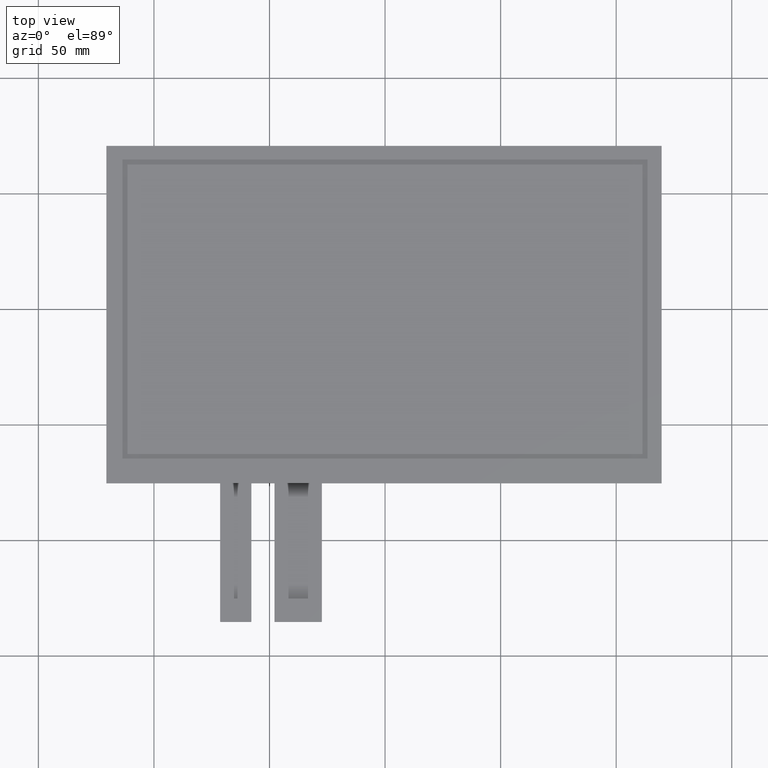
[diagram: clean part render]
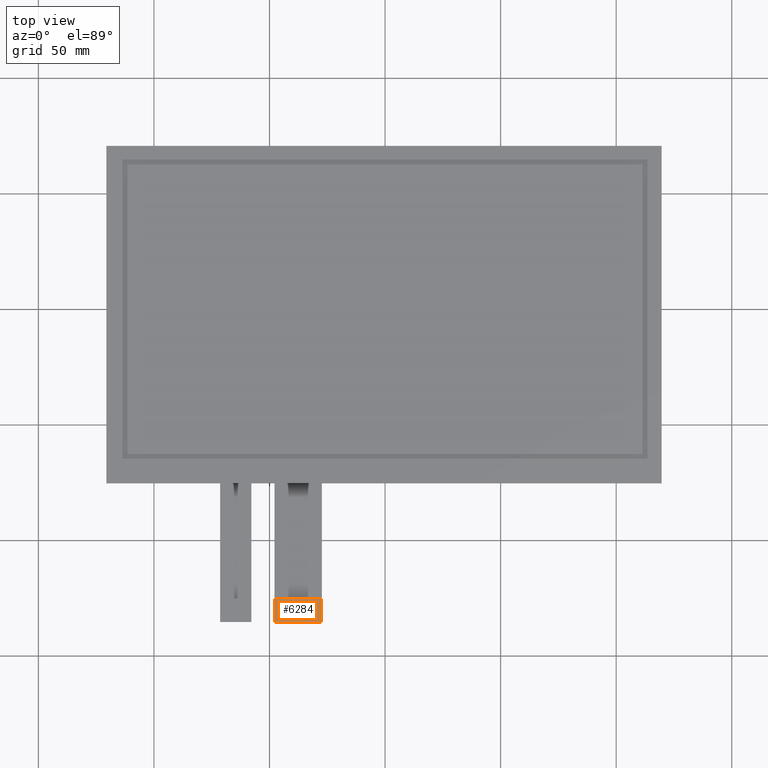
[diagram: same view with one face highlighted and labeled with its STEP entity id]
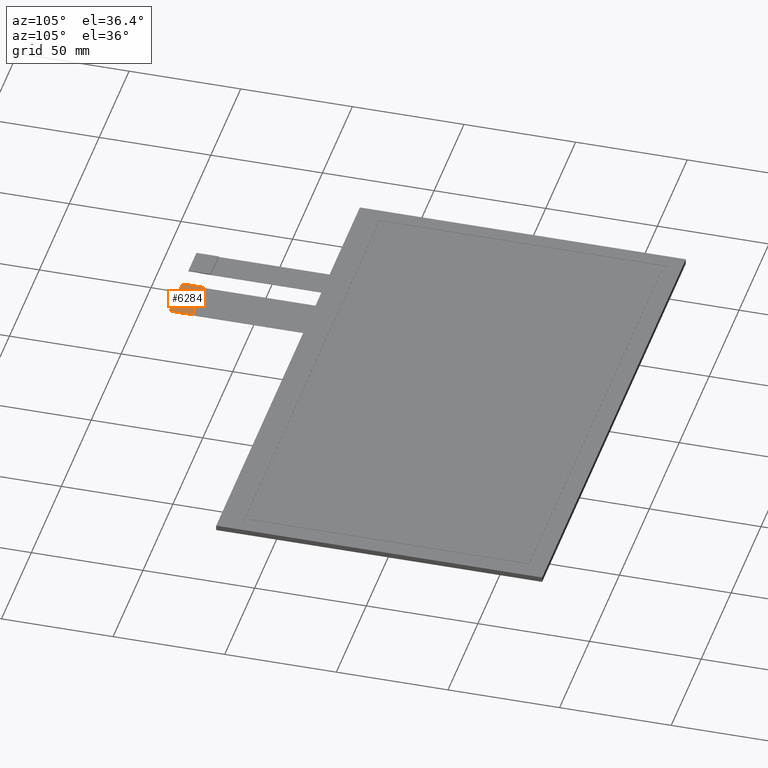
[diagram: same view with one face highlighted and labeled with its STEP entity id]
A machine part, top view. The second image highlights one B-rep face of the part: STEP entity #6284.
A second angle (auxiliary view) of the same face is appended — the face is thin or edge-on in the first view.
In plain terms, the highlighted planar face has unit normal (0, 0, 1).
Its self-contained STEP definition (entity closure, byte-faithful):
#346=PLANE('',#6614);
#648=FACE_OUTER_BOUND('',#950,.T.);
#950=EDGE_LOOP('',(#5889,#5890,#5891,#5892,#5893,#5894));
#1263=LINE('',#8727,#2143);
#1274=LINE('',#8753,#2154);
#1808=LINE('',#9822,#2688);
#1814=LINE('',#9832,#2694);
#2143=VECTOR('',#6953,10.);
#2154=VECTOR('',#6974,10.);
#2688=VECTOR('',#8042,10.);
#2694=VECTOR('',#8050,10.);
#2741=CIRCLE('',#6338,0.2);
#2744=CIRCLE('',#6344,0.2);
#2866=VERTEX_POINT('',#8394);
#2867=VERTEX_POINT('',#8395);
#3031=VERTEX_POINT('',#8725);
#3035=VERTEX_POINT('',#8737);
#3041=VERTEX_POINT('',#8751);
#3309=VERTEX_POINT('',#9821);
#3463=EDGE_CURVE('',#2866,#2867,#2741,.T.);
#3629=EDGE_CURVE('',#2866,#3031,#1263,.T.);
#3635=EDGE_CURVE('',#3035,#3031,#2744,.T.);
#3642=EDGE_CURVE('',#3035,#3041,#1274,.T.);
#4176=EDGE_CURVE('',#3309,#2867,#1808,.T.);
#4182=EDGE_CURVE('',#3041,#3309,#1814,.T.);
#5889=ORIENTED_EDGE('',*,*,#3463,.F.);
#5890=ORIENTED_EDGE('',*,*,#3629,.T.);
#5891=ORIENTED_EDGE('',*,*,#3635,.F.);
#5892=ORIENTED_EDGE('',*,*,#3642,.T.);
#5893=ORIENTED_EDGE('',*,*,#4182,.T.);
#5894=ORIENTED_EDGE('',*,*,#4176,.T.);
#6284=ADVANCED_FACE('',(#648),#346,.T.);
#6338=AXIS2_PLACEMENT_3D('',#8396,#6783,#6784);
#6344=AXIS2_PLACEMENT_3D('',#8739,#6964,#6965);
#6614=AXIS2_PLACEMENT_3D('',#9833,#8051,#8052);
#6783=DIRECTION('center_axis',(0.,0.,-1.));
#6784=DIRECTION('ref_axis',(-0.707106781186548,-0.707106781186548,0.));
#6953=DIRECTION('',(1.,0.,0.));
#6964=DIRECTION('center_axis',(0.,0.,-1.));
#6965=DIRECTION('ref_axis',(0.707106781186563,-0.707106781186532,0.));
#6974=DIRECTION('',(0.,1.,0.));
#8042=DIRECTION('',(0.,-1.,0.));
#8050=DIRECTION('',(-1.,0.,0.));
#8051=DIRECTION('center_axis',(0.,0.,1.));
#8052=DIRECTION('ref_axis',(1.,0.,0.));
#8394=CARTESIAN_POINT('',(-47.66,-135.34,-0.8));
#8395=CARTESIAN_POINT('',(-47.86,-135.14,-0.8));
#8396=CARTESIAN_POINT('Origin',(-47.66,-135.14,-0.8));
#8725=CARTESIAN_POINT('',(-27.5599999999999,-135.34,-0.8));
#8727=CARTESIAN_POINT('',(-47.86,-135.34,-0.8));
#8737=CARTESIAN_POINT('',(-27.3599999999999,-135.14,-0.8));
#8739=CARTESIAN_POINT('Origin',(-27.5599999999999,-135.14,-0.8));
#8751=CARTESIAN_POINT('',(-27.3599999999999,-125.34,-0.8));
#8753=CARTESIAN_POINT('',(-27.3599999999999,-135.34,-0.8));
#9821=CARTESIAN_POINT('',(-47.86,-125.34,-0.8));
#9822=CARTESIAN_POINT('',(-47.86,-125.34,-0.8));
#9832=CARTESIAN_POINT('',(-27.3599999999999,-125.34,-0.8));
#9833=CARTESIAN_POINT('Origin',(-37.6099999999999,-130.34,-0.8));